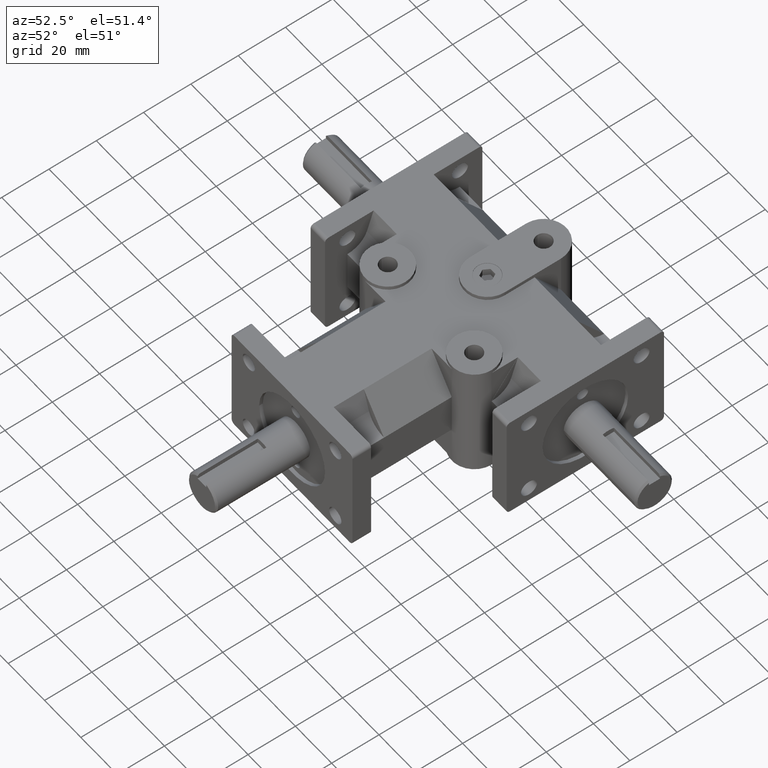
[diagram: clean part render]
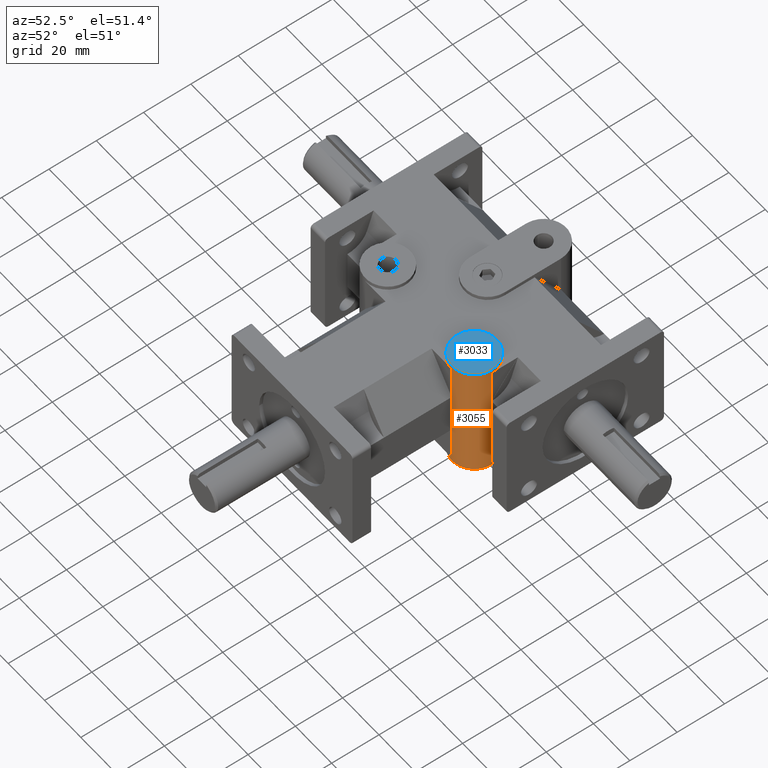
[diagram: same view with the hole feature highlighted: cylindrical wall and planar end face, labeled with their STEP entity ids]
A machine part, auxiliary view. The highlighted faces form one hole feature of diameter 19.05 mm: the cylindrical wall (entity #3055, orange) and its adjacent planar end face (entity #3033, blue) — they share a circular edge in the B-rep.
Wall:
#325=FACE_OUTER_BOUND('',#523,.T.);
#523=EDGE_LOOP('',(#2680,#2681,#2682,#2683,#2684,#2685,#2686,#2687,#2688,
#2689,#2690,#2691,#2692,#2693,#2694,#2695));
#812=LINE('',#5084,#1108);
#815=LINE('',#5091,#1111);
#817=LINE('',#5097,#1113);
#819=LINE('',#5100,#1115);
#833=LINE('',#5128,#1129);
#834=LINE('',#5130,#1130);
#835=LINE('',#5131,#1131);
#836=LINE('',#5132,#1132);
#1108=VECTOR('',#4173,1.);
#1111=VECTOR('',#4178,1.);
#1113=VECTOR('',#4182,1.);
#1115=VECTOR('',#4186,1.);
#1129=VECTOR('',#4214,0.375);
#1130=VECTOR('',#4217,1.);
#1131=VECTOR('',#4218,0.375);
#1132=VECTOR('',#4219,1.);
#1266=CIRCLE('',#3331,0.375);
#1267=CIRCLE('',#3333,0.375);
#1268=CIRCLE('',#3335,0.375);
#1269=CIRCLE('',#3336,0.375);
#1279=CIRCLE('',#3366,0.375);
#1280=CIRCLE('',#3367,0.375);
#1452=VERTEX_POINT('',#4752);
#1461=VERTEX_POINT('',#4784);
#1524=VERTEX_POINT('',#5013);
#1525=VERTEX_POINT('',#5016);
#1526=VERTEX_POINT('',#5020);
#1527=VERTEX_POINT('',#5022);
#1528=VERTEX_POINT('',#5024);
#1547=VERTEX_POINT('',#5087);
#1548=VERTEX_POINT('',#5089);
#1549=VERTEX_POINT('',#5093);
#1551=VERTEX_POINT('',#5096);
#1558=VERTEX_POINT('',#5127);
#1907=EDGE_CURVE('',#1524,#1524,#1266,.T.);
#1908=EDGE_CURVE('',#1525,#1525,#1267,.T.);
#1911=EDGE_CURVE('',#1526,#1527,#1268,.T.);
#1912=EDGE_CURVE('',#1527,#1528,#1269,.T.);
#1943=EDGE_CURVE('',#1526,#1452,#812,.T.);
#1946=EDGE_CURVE('',#1547,#1548,#815,.T.);
#1948=EDGE_CURVE('',#1549,#1551,#817,.T.);
#1950=EDGE_CURVE('',#1528,#1461,#819,.T.);
#1965=EDGE_CURVE('',#1524,#1558,#833,.T.);
#1966=EDGE_CURVE('',#1551,#1558,#1279,.T.);
#1967=EDGE_CURVE('',#1461,#1549,#834,.T.);
#1968=EDGE_CURVE('',#1527,#1525,#835,.T.);
#1969=EDGE_CURVE('',#1547,#1452,#836,.T.);
#1970=EDGE_CURVE('',#1558,#1548,#1280,.T.);
#2680=ORIENTED_EDGE('',*,*,#1907,.T.);
#2681=ORIENTED_EDGE('',*,*,#1965,.T.);
#2682=ORIENTED_EDGE('',*,*,#1966,.F.);
#2683=ORIENTED_EDGE('',*,*,#1948,.F.);
#2684=ORIENTED_EDGE('',*,*,#1967,.F.);
#2685=ORIENTED_EDGE('',*,*,#1950,.F.);
#2686=ORIENTED_EDGE('',*,*,#1912,.F.);
#2687=ORIENTED_EDGE('',*,*,#1968,.T.);
#2688=ORIENTED_EDGE('',*,*,#1908,.T.);
#2689=ORIENTED_EDGE('',*,*,#1968,.F.);
#2690=ORIENTED_EDGE('',*,*,#1911,.F.);
#2691=ORIENTED_EDGE('',*,*,#1943,.T.);
#2692=ORIENTED_EDGE('',*,*,#1969,.F.);
#2693=ORIENTED_EDGE('',*,*,#1946,.T.);
#2694=ORIENTED_EDGE('',*,*,#1970,.F.);
#2695=ORIENTED_EDGE('',*,*,#1965,.F.);
#2907=CYLINDRICAL_SURFACE('',#3365,0.375);
#3055=ADVANCED_FACE('',(#325),#2907,.T.);
#3331=AXIS2_PLACEMENT_3D('',#5014,#4099,#4100);
#3333=AXIS2_PLACEMENT_3D('',#5017,#4103,#4104);
#3335=AXIS2_PLACEMENT_3D('',#5023,#4109,#4110);
#3336=AXIS2_PLACEMENT_3D('',#5025,#4111,#4112);
#3365=AXIS2_PLACEMENT_3D('',#5126,#4212,#4213);
#3366=AXIS2_PLACEMENT_3D('',#5129,#4215,#4216);
#3367=AXIS2_PLACEMENT_3D('',#5133,#4220,#4221);
#4099=DIRECTION('center_axis',(0.,0.,-1.));
#4100=DIRECTION('ref_axis',(1.,0.,0.));
#4103=DIRECTION('center_axis',(0.,0.,1.));
#4104=DIRECTION('ref_axis',(1.,0.,0.));
#4109=DIRECTION('center_axis',(0.,0.,1.));
#4110=DIRECTION('ref_axis',(1.,0.,0.));
#4111=DIRECTION('center_axis',(0.,0.,1.));
#4112=DIRECTION('ref_axis',(1.,0.,0.));
#4173=DIRECTION('',(0.,0.,1.));
#4178=DIRECTION('',(0.,0.,1.));
#4182=DIRECTION('',(0.,0.,1.));
#4186=DIRECTION('',(0.,0.,1.));
#4212=DIRECTION('center_axis',(0.,0.,1.));
#4213=DIRECTION('ref_axis',(1.,0.,0.));
#4214=DIRECTION('',(0.,0.,-1.));
#4215=DIRECTION('center_axis',(0.,0.,-1.));
#4216=DIRECTION('ref_axis',(1.,0.,0.));
#4217=DIRECTION('',(0.,0.,1.));
#4218=DIRECTION('',(0.,0.,-1.));
#4219=DIRECTION('',(0.,0.,-1.));
#4220=DIRECTION('center_axis',(0.,0.,-1.));
#4221=DIRECTION('ref_axis',(1.,0.,0.));
#4752=CARTESIAN_POINT('',(1.3125,2.3125,-0.34375));
#4784=CARTESIAN_POINT('',(0.9375,1.9375,-0.34375));
#5013=CARTESIAN_POINT('',(0.5625,2.3125,1.));
#5014=CARTESIAN_POINT('Origin',(0.9375,2.3125,1.));
#5016=CARTESIAN_POINT('',(0.5625,2.3125,-1.));
#5017=CARTESIAN_POINT('Origin',(0.9375,2.3125,-1.));
#5020=CARTESIAN_POINT('',(1.3125,2.3125,-0.9375));
#5022=CARTESIAN_POINT('',(0.5625,2.3125,-0.9375));
#5023=CARTESIAN_POINT('Origin',(0.9375,2.3125,-0.9375));
#5024=CARTESIAN_POINT('',(0.9375,1.9375,-0.9375));
#5025=CARTESIAN_POINT('Origin',(0.9375,2.3125,-0.9375));
#5084=CARTESIAN_POINT('',(1.3125,2.3125,0.));
#5087=CARTESIAN_POINT('',(1.3125,2.3125,0.34375));
#5089=CARTESIAN_POINT('',(1.3125,2.3125,0.9375));
#5091=CARTESIAN_POINT('',(1.3125,2.3125,0.));
#5093=CARTESIAN_POINT('',(0.9375,1.9375,0.34375));
#5096=CARTESIAN_POINT('',(0.9375,1.9375,0.9375));
#5097=CARTESIAN_POINT('',(0.9375,1.9375,0.));
#5100=CARTESIAN_POINT('',(0.9375,1.9375,0.));
#5126=CARTESIAN_POINT('Origin',(0.9375,2.3125,0.));
#5127=CARTESIAN_POINT('',(0.5625,2.3125,0.9375));
#5128=CARTESIAN_POINT('',(0.5625,2.3125,0.));
#5129=CARTESIAN_POINT('Origin',(0.9375,2.3125,0.9375));
#5130=CARTESIAN_POINT('',(0.9375,1.9375,0.));
#5131=CARTESIAN_POINT('',(0.5625,2.3125,0.));
#5132=CARTESIAN_POINT('',(1.3125,2.3125,0.));
#5133=CARTESIAN_POINT('Origin',(0.9375,2.3125,0.9375));
End face:
#47=FACE_BOUND('',#495,.T.);
#138=PLANE('',#3330);
#303=FACE_OUTER_BOUND('',#494,.T.);
#494=EDGE_LOOP('',(#2558));
#495=EDGE_LOOP('',(#2559));
#1263=CIRCLE('',#3326,0.1325);
#1266=CIRCLE('',#3331,0.375);
#1521=VERTEX_POINT('',#5003);
#1524=VERTEX_POINT('',#5013);
#1903=EDGE_CURVE('',#1521,#1521,#1263,.T.);
#1907=EDGE_CURVE('',#1524,#1524,#1266,.T.);
#2558=ORIENTED_EDGE('',*,*,#1907,.F.);
#2559=ORIENTED_EDGE('',*,*,#1903,.T.);
#3033=ADVANCED_FACE('',(#303,#47),#138,.T.);
#3326=AXIS2_PLACEMENT_3D('',#5005,#4088,#4089);
#3330=AXIS2_PLACEMENT_3D('',#5012,#4097,#4098);
#3331=AXIS2_PLACEMENT_3D('',#5014,#4099,#4100);
#4088=DIRECTION('center_axis',(0.,0.,-1.));
#4089=DIRECTION('ref_axis',(1.,0.,0.));
#4097=DIRECTION('center_axis',(0.,0.,1.));
#4098=DIRECTION('ref_axis',(-1.,0.,0.));
#4099=DIRECTION('center_axis',(0.,0.,-1.));
#4100=DIRECTION('ref_axis',(1.,0.,0.));
#5003=CARTESIAN_POINT('',(0.805,2.3125,1.));
#5005=CARTESIAN_POINT('Origin',(0.9375,2.3125,1.));
#5012=CARTESIAN_POINT('Origin',(0.971590909090909,2.3125,1.));
#5013=CARTESIAN_POINT('',(0.5625,2.3125,1.));
#5014=CARTESIAN_POINT('Origin',(0.9375,2.3125,1.));